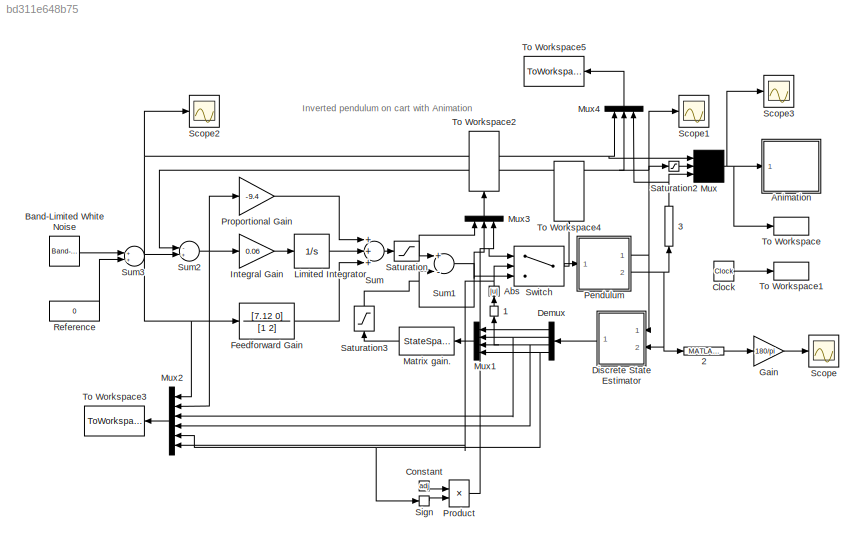
MODEL slx_bd311e648b75
KIND model
BLOCK [MATLABFcn]  1
  MATLABFcn = wrapToPi
  Ports = [1, 1]
BLOCK [MATLABFcn]  2
  MATLABFcn = wrapTo2Pi
  Ports = [1, 1]
BLOCK [MATLABFcn]  3
  MATLABFcn = wrapToPi
  Ports = [1, 1]
BLOCK [Abs] Abs
  SaturateOnIntegerOverflow = off
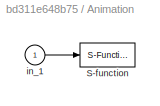
BLOCK [SubSystem] Animation
  FunctionWithSeparateData = off
  MaskHideContents = off
  MinAlgLoopOccurrences = off
  Opaque = off
  Ports = [1]
  PropExecContextOutsideSubsystem = off
  RTWSystemCode = Auto
  RequestExecContextInheritance = off
BLOCK [S-Function] Animation/S-function
  DeleteFcn = pendan([],[],[],'DeleteBlock');
  EnableBusSupport = off
  FunctionName = pendan
  Parameters = RefBlock
  Ports = [1]
BLOCK [Inport] Animation/in_1
  IconDisplay = Port number
BLOCK [Reference] Band-Limited White Noise  REF=simulink/Sources/Band-Limited
White Noise
  Cov = [noisePower]
  Ports = [0, 1]
  SourceBlock = simulink/Sources/Band-Limited\nWhite Noise
  SourceType = Band-Limited White Noise.
  Ts = 10
  VectorParams1D = on
  seed = [seed]
BLOCK [Clock] Clock
BLOCK [Constant] Constant
  Value = adj
BLOCK [Demux] Demux
  DisplayOption = bar
  Ports = [1, 4]
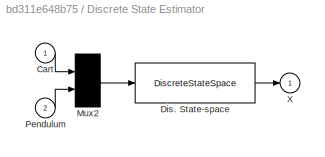
BLOCK [SubSystem] Discrete State Estimator
  FunctionWithSeparateData = off
  MaskHideContents = off
  MinAlgLoopOccurrences = off
  Opaque = off
  Ports = [2, 1]
  PropExecContextOutsideSubsystem = off
  RTWSystemCode = Auto
  RequestExecContextInheritance = off
BLOCK [Inport] Discrete State Estimator/Cart
  IconDisplay = Port number
BLOCK [DiscreteStateSpace] Discrete State Estimator/Dis. State-space
  A = zeros(2)
  B = -eye(2)/Ts
  C = [0 0; 1 0; 0 0; 0 1]
  D = [1 0; 1/Ts 0; 0 1; 0 1/Ts]
  SampleTime = Ts
BLOCK [Mux] Discrete State Estimator/Mux2
  Inputs = 2
  Ports = [2, 1]
BLOCK [Inport] Discrete State Estimator/Pendulum
  IconDisplay = Port number
  Port = 2
BLOCK [Outport] Discrete State Estimator/X
  IconDisplay = Port number
  InitialOutput = 0
BLOCK [TransferFcn] Feedforward Gain
  Denominator = [1 2]
  Numerator = [7.12 0]
BLOCK [Gain] Gain
  Gain = 180/pi
  OutDataTypeStr = Inherit: Inherit via internal rule
  ParamDataTypeStr = Inherit: Inherit via internal rule
  SaturateOnIntegerOverflow = off
BLOCK [Gain] Integral Gain
  Gain = 0.06
BLOCK [Integrator] Limited Integrator
  LimitOutput = on
  LowerSaturationLimit = -5
  Ports = [1, 1]
  UpperSaturationLimit = 5
BLOCK [StateSpace] Matrix gain.
  A = []
  B = []
  C = []
  D = K
BLOCK [Mux] Mux
  Inputs = 3
  Ports = [3, 1]
BLOCK [Mux] Mux1
  DisplayOption = bar
  Ports = [4, 1]
BLOCK [Mux] Mux2
  DisplayOption = bar
  Inputs = 6
  Ports = [6, 1]
BLOCK [Mux] Mux3
  DisplayOption = bar
  Inputs = 3
  Ports = [3, 1]
BLOCK [Mux] Mux4
  DisplayOption = bar
  Inputs = 3
  Ports = [3, 1]
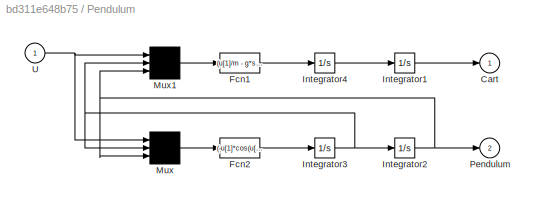
BLOCK [SubSystem] Pendulum
  FunctionWithSeparateData = off
  MaskHideContents = off
  MinAlgLoopOccurrences = off
  Opaque = off
  Ports = [1, 2]
  PropExecContextOutsideSubsystem = off
  RTWSystemCode = Auto
  RequestExecContextInheritance = off
BLOCK [Outport] Pendulum/Cart
  IconDisplay = Port number
  InitialOutput = 0
BLOCK [Fcn] Pendulum/Fcn1
  Expr = (u[1]/m - g*sin(u[3])*cos(u[3]) + l*power(u[2],2)*sin(u[3]))/(Mcart/m + power(sin(u[3]),2))
BLOCK [Fcn] Pendulum/Fcn2
  Expr = (-u[1]*cos(u[3])/m + (Mcart+m)*g*sin(u[3])/m - l*power(u[2],2)*sin(u[3])*cos(u[3]))/(l*(Mcart/m + power(sin(u[3]),2)))
BLOCK [Integrator] Pendulum/Integrator1
  Ports = [1, 1]
BLOCK [Integrator] Pendulum/Integrator2
  InitialCondition = init
  Ports = [1, 1]
BLOCK [Integrator] Pendulum/Integrator3
  Ports = [1, 1]
BLOCK [Integrator] Pendulum/Integrator4
  Ports = [1, 1]
BLOCK [Mux] Pendulum/Mux
  Inputs = 3
  Ports = [3, 1]
BLOCK [Mux] Pendulum/Mux1
  Inputs = 3
  Ports = [3, 1]
BLOCK [Outport] Pendulum/Pendulum
  IconDisplay = Port number
  InitialOutput = 0
  Port = 2
BLOCK [Inport] Pendulum/U
  IconDisplay = Port number
BLOCK [Product] Product
  InputSameDT = off
  OutDataTypeStr = Inherit: Inherit via internal rule
  Ports = [2, 1]
  RndMeth = Floor
  SaturateOnIntegerOverflow = off
BLOCK [Gain] Proportional Gain
  Gain = -9.4
BLOCK [Constant] Reference
  Value = 0
BLOCK [Saturate] Saturation
  InputPortMap = u0
  LowerLimit = -vsat
  Ports = [1, 1]
  UpperLimit = vsat
BLOCK [Saturate] Saturation2
  InputPortMap = u0
  LowerLimit = -10
  Ports = [1, 1]
  UpperLimit = 10
BLOCK [Saturate] Saturation3
  InputPortMap = u0
  LowerLimit = -lqrsat
  Ports = [1, 1]
  UpperLimit = lqrsat
BLOCK [Scope] Scope
  DataFormat = StructureWithTime
  Floating = off
  LimitDataPoints = off
  NumInputPorts = 1
  Ports = [1]
  SampleTime = 0
  ShowLegends = off
  TimeRange = 50
  YMax = 3.18
  YMin = 3.105
  ZoomMode = yonly
BLOCK [Scope] Scope1
  DataFormat = StructureWithTime
  Floating = off
  NumInputPorts = 1
  Ports = [1]
  SampleTime = 0
  SaveName = ScopeData1
  ShowLegends = off
BLOCK [Scope] Scope2
  DataFormat = StructureWithTime
  Floating = off
  NumInputPorts = 1
  Ports = [1]
  SampleTime = 0
  SaveName = ScopeData2
  ShowLegends = off
  ZoomMode = yonly
BLOCK [Scope] Scope3
  DataFormat = StructureWithTime
  Floating = off
  NumInputPorts = 1
  Ports = [1]
  SampleTime = 0
  SaveName = ScopeData3
  ShowLegends = off
  ZoomMode = yonly
BLOCK [Signum] Sign
BLOCK [Sum] Sum
  Inputs = +++
  Ports = [3, 1]
BLOCK [Sum] Sum1
  Inputs = +-
  Ports = [2, 1]
BLOCK [Sum] Sum2
  Inputs = -+
  Ports = [2, 1]
BLOCK [Sum] Sum3
  Ports = [2, 1]
BLOCK [Switch] Switch
  InputSameDT = off
  SaturateOnIntegerOverflow = off
  Threshold = thres
BLOCK [ToWorkspace] To Workspace
  Ports = [1]
  SampleTime = 0.1
  VariableName = y
BLOCK [ToWorkspace] To Workspace1
  Ports = [1]
  SampleTime = 0.1
  VariableName = t
BLOCK [ToWorkspace] To Workspace2
  MaxDataPoints = inf
  Ports = [1]
  SampleTime = -1
  VariableName = control
BLOCK [ToWorkspace] To Workspace3
  MaxDataPoints = inf
  Ports = [1]
  SampleTime = -1
  VariableName = input
BLOCK [ToWorkspace] To Workspace4
  MaxDataPoints = inf
  Ports = [1]
  SampleTime = -1
  VariableName = final
BLOCK [ToWorkspace] To Workspace5
  MaxDataPoints = inf
  Ports = [1]
  SampleTime = -1
  SaveFormat = Timeseries
  VariableName = result
ANNOTATION (root): Inverted pendulum on cart with Animation
LINE  1:1 -> Abs:1
LINE  2:1 -> Gain:1
NET  3:1 -> Mux4:3, Mux:3
NET Abs:1 -> Mux2:6, Switch:2
LINE Animation/in_1:1 -> Animation/S-function:1
LINE Band-Limited White Noise:1 -> Sum3:1
LINE Clock:1 -> To Workspace1:1
LINE Constant:1 -> Product:1
LINE Demux:1 -> Mux1:1
NET Demux:2 -> Mux1:2, Mux2:3
NET Demux:3 ->  1:1, Mux1:3, Mux2:4
NET Demux:4 -> Mux1:4, Mux2:5, Sign:1
LINE Discrete State Estimator/Cart:1 -> Discrete State Estimator/Mux2:1
LINE Discrete State Estimator/Dis. State-space:1 -> Discrete State Estimator/X:1
LINE Discrete State Estimator/Mux2:1 -> Discrete State Estimator/Dis. State-space:1
LINE Discrete State Estimator/Pendulum:1 -> Discrete State Estimator/Mux2:2
LINE Discrete State Estimator:1 -> Demux:1
LINE Feedforward Gain:1 -> Sum:3
LINE Gain:1 -> Scope:1
LINE Integral Gain:1 -> Limited Integrator:1
LINE Limited Integrator:1 -> Sum:2
LINE Matrix gain.:1 -> Saturation3:1
LINE Mux1:1 -> Matrix gain.:1
LINE Mux2:1 -> To Workspace3:1
LINE Mux3:1 -> To Workspace2:1
LINE Mux4:1 -> To Workspace5:1
NET Mux:1 -> Animation:1, Scope3:1, To Workspace:1
LINE Pendulum/Fcn1:1 -> Pendulum/Integrator4:1
LINE Pendulum/Fcn2:1 -> Pendulum/Integrator3:1
LINE Pendulum/Integrator1:1 -> Pendulum/Cart:1
NET Pendulum/Integrator2:1 -> Pendulum/Mux1:3, Pendulum/Mux:3, Pendulum/Pendulum:1
NET Pendulum/Integrator3:1 -> Pendulum/Integrator2:1, Pendulum/Mux1:2, Pendulum/Mux:2
LINE Pendulum/Integrator4:1 -> Pendulum/Integrator1:1
LINE Pendulum/Mux1:1 -> Pendulum/Fcn1:1
LINE Pendulum/Mux:1 -> Pendulum/Fcn2:1
NET Pendulum/U:1 -> Pendulum/Mux1:1, Pendulum/Mux:1
NET Pendulum:1 -> Discrete State Estimator:1, Mux4:2, Saturation2:1, Scope1:1, Sum2:1
NET Pendulum:2 ->  2:1,  3:1, Discrete State Estimator:2
NET Product:1 -> Mux3:3, Switch:1
LINE Proportional Gain:1 -> Sum:1
LINE Reference:1 -> Sum3:2
LINE Saturation2:1 -> Mux:2
NET Saturation3:1 -> Mux3:2, Sum1:2
NET Saturation:1 -> Mux3:1, Sum1:1
LINE Sign:1 -> Product:2
LINE Sum1:1 -> Switch:3
NET Sum2:1 -> Integral Gain:1, Mux2:2, Proportional Gain:1
NET Sum3:1 -> Feedforward Gain:1, Mux2:1, Mux4:1, Mux:1, Scope2:1, Sum2:2
LINE Sum:1 -> Saturation:1
NET Switch:1 -> Pendulum:1, To Workspace4:1
note: NET lines group one-source signal fan-out (src -> all destinations, sorted); 1:1 wires keep LINE
